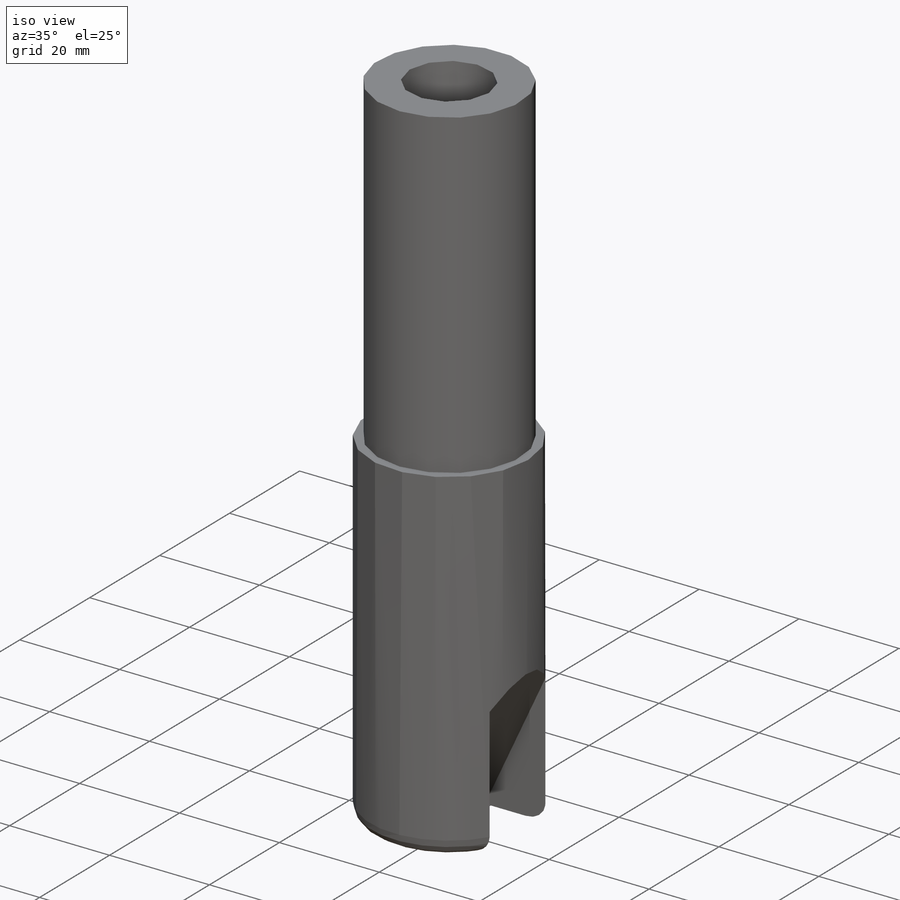
[diagram: iso view]
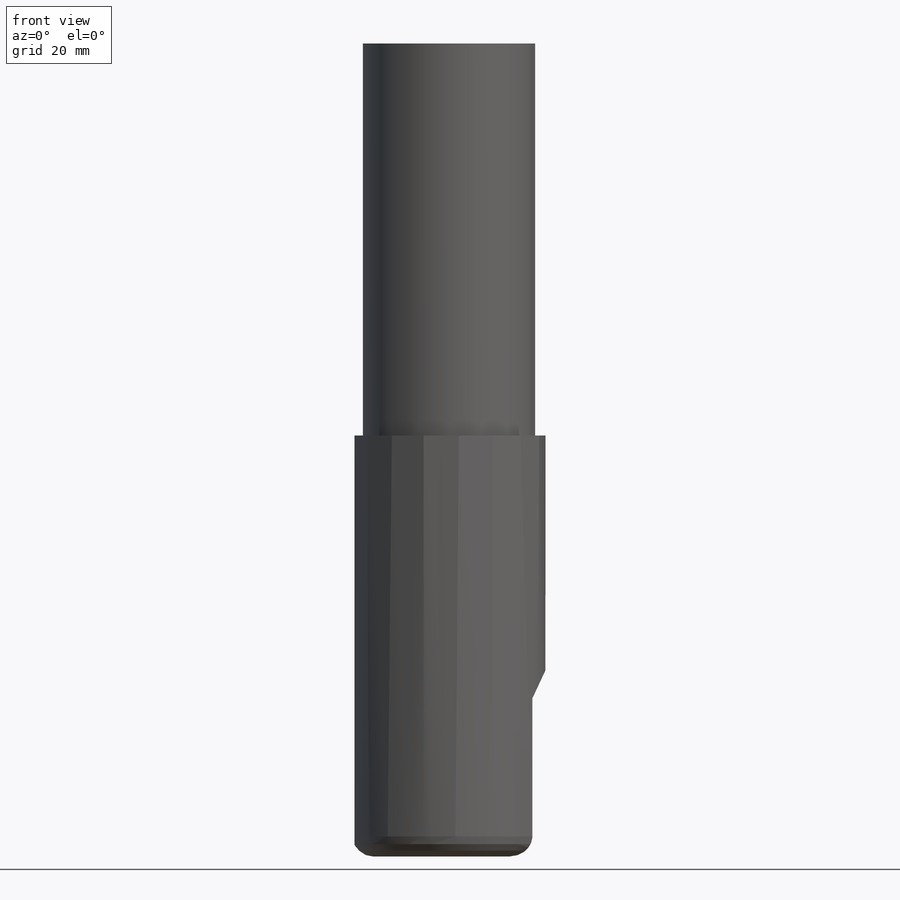
[diagram: front view]
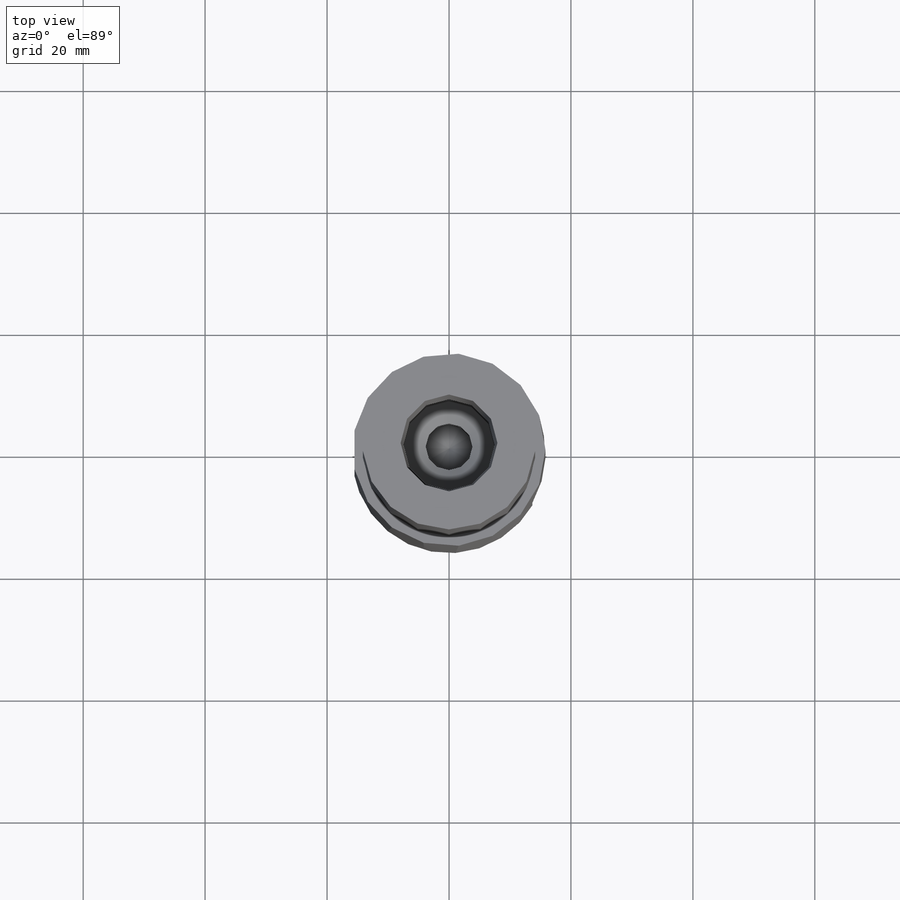
[diagram: top view]
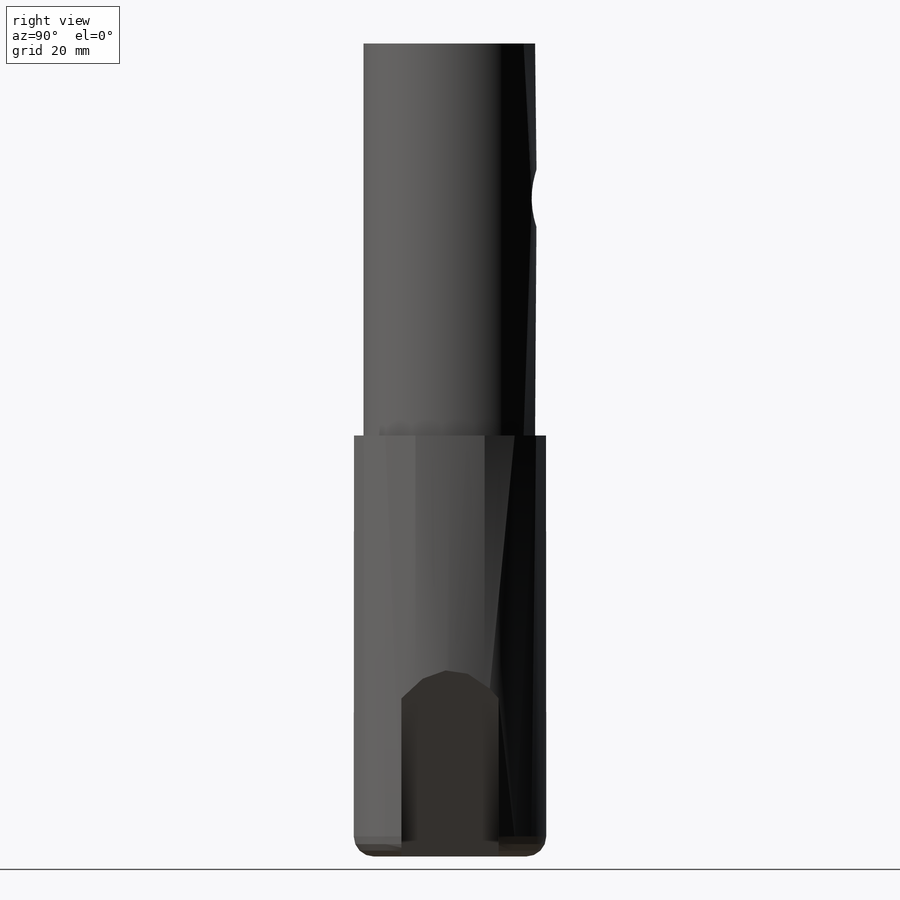
[diagram: right view]
SOLIDWORKS PART (.sldprt)
format: sldprt  version: not decoded by parser v0  size: 495,616 bytes
history: native  units: mm
features: sketch x16, hole x4, cut_extrude x3, plane x3, material x1, extrude x1, cut_revolve x1, fillet x1 (+13 scaffold rows collapsed)
feature tree (43):
  scaffold x13  (default folders/planes/origin — collapsed)
  material  "Material <not specified>"
  sketch  "Sketch1"  dims[D1=31.6484mm]
  extrude  "Extrude1"  Depth=133.35mm
  sketch  "Sketch2"  dims[D1=~12.06595mm]
  cut_extrude  "Cut-Extrude1"  Depth=64.2874mm
  sketch  "Sketch3"  dims[c1.D1=1.5748mm c1.D2=~44.451575mm c2.D2=~25.588898deg c3.D2=69.0626mm c4.D2=25.0deg]
  cut_extrude  "Cut-Extrude2"  Depth=7.96925mm
  sketch  "Sketch11"
  hole  "N (0.302) Diameter Hole2"  Diameter=7.6708mm Depth=50.8mm
  sketch  "3DSketch6"
  sketch  "Sketch12"  dims[hole-wizard template sketch: 46 standard entries collapsed; hole parameters kept: c15.Hole Dia.=7.6708mm c15.Hole Depth=50.8mm c15.D3=~14.816244mm c15.Drill Angle=118.0deg]
  hole  "N (0.302) Diameter Hole3"  Diameter=14.9352mm Depth=34.925mm
  sketch  "3DSketch7"
  sketch  "Sketch13"  dims[hole-wizard template sketch: 46 standard entries collapsed; hole parameters kept: c15.Hole Dia.=14.9352mm c15.Hole Depth=34.925mm c15.D3=~14.816244mm c15.Drill Angle=118.0deg]
  sketch  "Sketch14"  dims[c1.D1=~22.348569mm c2.D1=1.433deg c2.D2=7.9375mm c2.D3=19.05mm]
  cut_revolve  "Cut-Revolve1"  Angle=360deg
  sketch  "Sketch43"  dims[c1.D1=~1.595933mm c1.D2=~38.947738mm c2.D1=6.35mm c2.D2=3.175mm]
  cut_extrude  "Cut-Extrude3"  [1 undecoded]
  fillet  "Fillet2"  Radius=3.302mm
  plane  "Plane1"  Offset=14.19225mm
  hole  "1/8 NPT Tapped Hole1"  Diameter=8.4328mm Depth=14.224mm
  sketch  "Sketch45"  dims[D1=25.4mm]
  sketch  "Sketch44"  dims[hole-wizard template sketch: 51 standard entries collapsed; hole parameters kept: c13.Tap Drill Depth=14.224mm c13.Thread Dia.=~9.455074mm c13.D4=~22.362017mm c13.Thread Angle=3.43deg c13.Thread Depth=6.35mm c13.D6=~25.48394mm c13.Drill Angle=118.0deg]
  sketch  "Sketch46"  dims[c1.D1=~12.118969mm c2.D1=240.0deg]
  plane  "Plane2"
  plane  "Plane3"  Offset=14.19225mm
  hole  "1/8 NPT Tapped Hole2"  Diameter=8.4328mm Depth=14.224mm
  sketch  "Sketch48"  dims[D1=44.45mm]
  sketch  "Sketch47"  dims[hole-wizard template sketch: 51 standard entries collapsed; hole parameters kept: c13.Tap Drill Depth=14.224mm c13.Thread Dia.=~9.455074mm c13.D4=~22.362017mm c13.Thread Angle=3.43deg c13.Thread Depth=6.35mm c13.D6=~25.48394mm c13.Drill Angle=118.0deg]
  sketch  "Sketch49"
decode coverage: 21 of 26 modeling features carry decoded parameters
note: ~ marks probable driven/reference dimensions
note: 1 parameter value undecoded
summary: Diameter pulled from absorbed wizard sketch
note: suppression state not decoded; provenance and decode notes live in map.json
